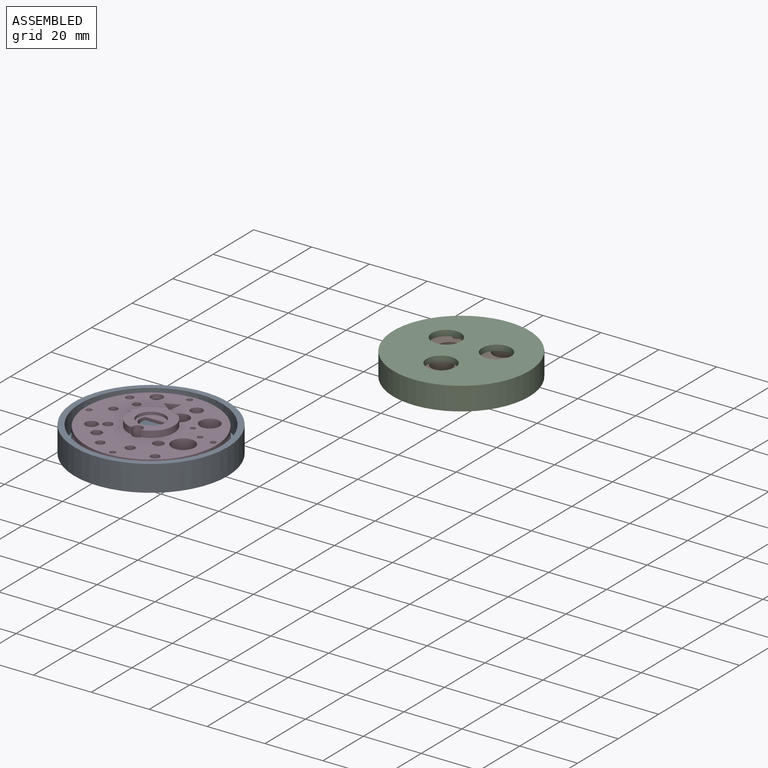
[diagram: assembled view]
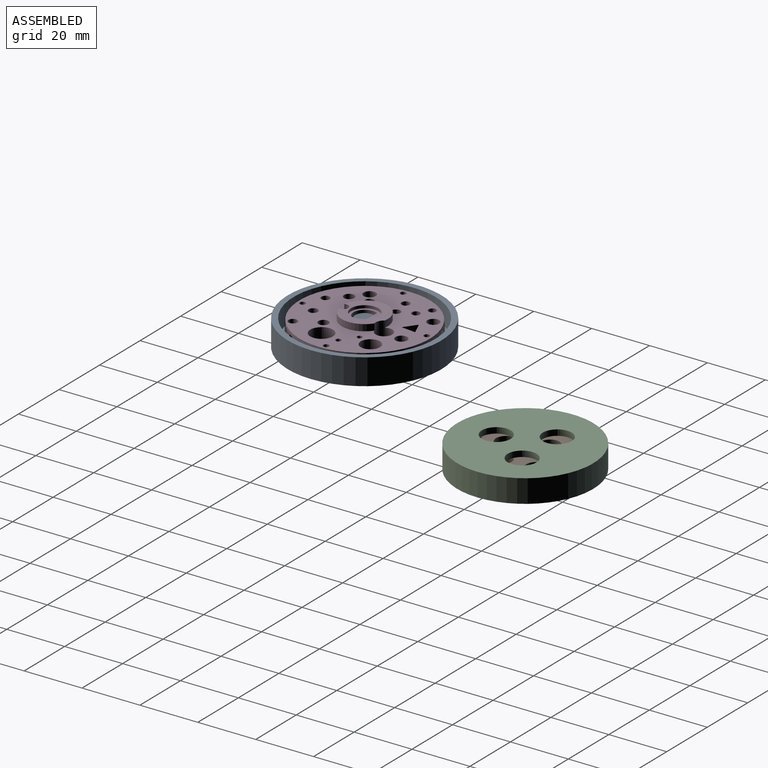
[diagram: assembled view, second angle]
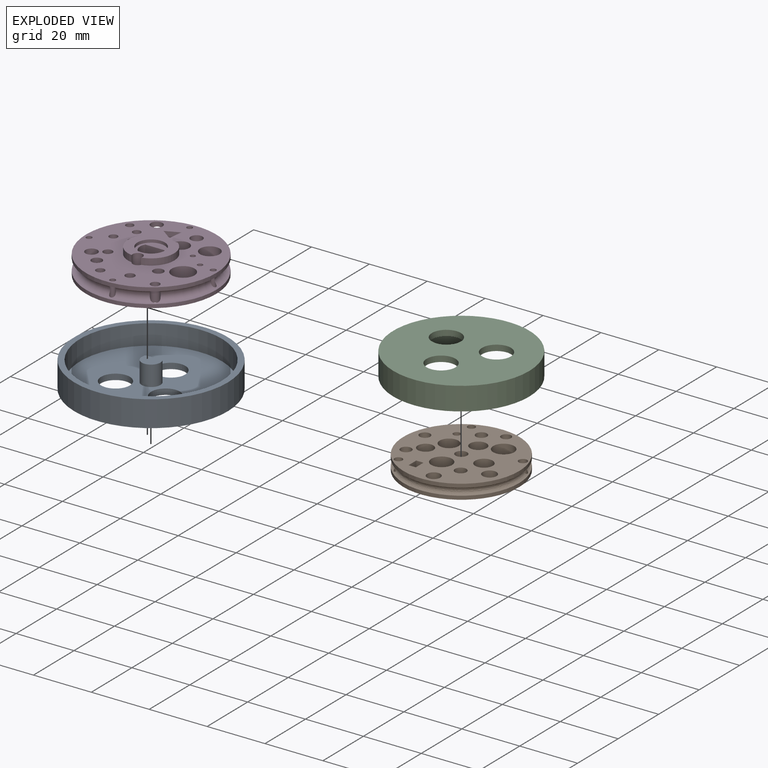
[diagram: exploded view]
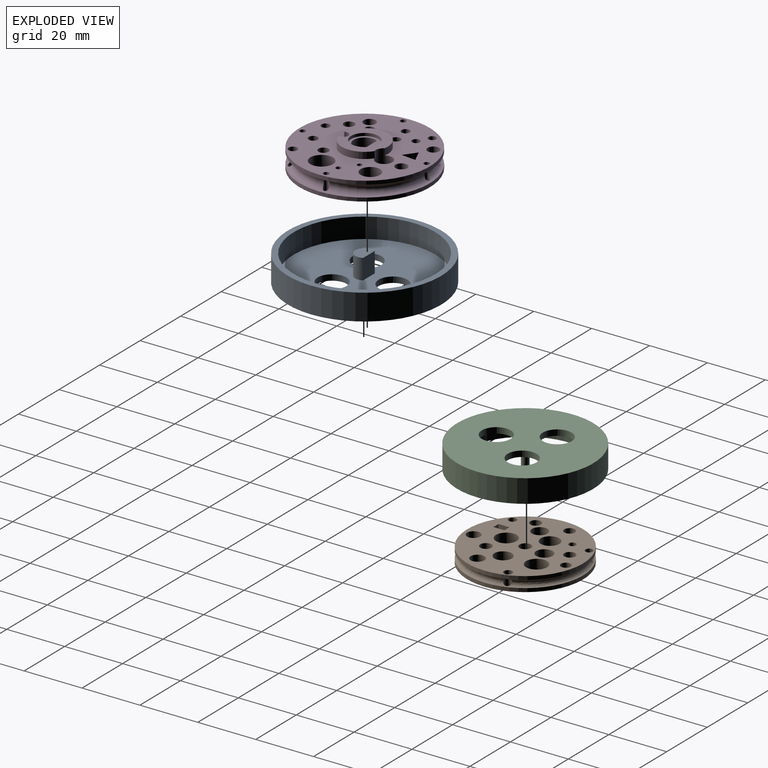
[diagram: exploded view, second angle]
ASSEMBLY  parts=4 mates=2
PART A: 11 faces, bbox 53x53x9 mm
  f0: cylinder r=24.5mm len=49mm, axis (0,0,-1), area 1077.6mm2, adj f2,f10
  f1: cylinder r=26.5mm len=53mm, axis (0,0,-1), area 1498.5mm2, adj f2,f3
  f2: plane 53x53mm, normal (0,0,1), area 320.4mm2, adj f0,f1
  f3: plane 53x53mm, normal (0,0,-1), area 1970.6mm2, adj f1,f7,f8,f9
  f4: cylinder r=3.25mm len=7mm, axis (0,0,-1), area 93.3mm2, adj f5,f6,f10
  f5: plane 7x5.77mm, normal (0,1,0), area 40.4mm2, adj f4,f6,f10
  f6: plane 6.5x4.75mm, normal (0,0,1), area 26mm2, adj f4,f5
  f7: cylinder r=5mm len=10mm, axis (0,0,-1), area 62.8mm2, adj f3,f10
  f8: cylinder r=5mm len=10mm, axis (0,0,-1), area 62.8mm2, adj f3,f10
  f9: cylinder r=5mm len=10mm, axis (0,0,-1), area 62.8mm2, adj f3,f10
  f10: plane 49x49mm, normal (0,0,1), area 1624.1mm2, adj f0,f4,f5,f7,f8,f9
PART B: 27 faces, bbox 40x40x5 mm
  f0: cylinder r=1.35mm len=5mm, axis (0,0,-1), area 37.2mm2, adj f24,f25,f26
  f1: cylinder r=2.28mm len=5mm, axis (0,0,-1), area 71.5mm2, adj f24,f25,f26
  f2: cylinder r=1.45mm len=5mm, axis (0,0,-1), area 39.8mm2, adj f24,f25,f26
  f3: cylinder r=1.29mm len=5mm, axis (0,0,-1), area 34.7mm2, adj f24,f25,f26
  f4: cylinder r=20mm len=40mm, axis (0,0,-1), area 157.4mm2, adj f25,f26
  f5: cylinder r=20mm len=40mm, axis (0,0,-1), area 157.4mm2, adj f24,f26
  f6: plane 5x3.79mm, normal (-1,0,0), area 18.9mm2, adj f7,f9,f24,f25
  f7: plane 5x2.5mm, normal (0,1,0), area 12.5mm2, adj f6,f8,f24,f25
  f8: plane 5x3.79mm, normal (1,0,0), area 18.9mm2, adj f7,f9,f24,f25
  f9: plane 5x2.5mm, normal (0,-1,0), area 12.5mm2, adj f6,f8,f24,f25
  f10: cylinder r=2mm len=5mm, axis (0,0,-1), area 62.8mm2, adj f24,f25
  f11: cylinder r=1.2mm len=5mm, axis (0,0,-1), area 37.8mm2, adj f24,f25
  f12: cylinder r=3.24mm len=6.48mm, axis (0,0,-1), area 101.9mm2, adj f24,f25
  f13: cylinder r=3.62mm len=7.25mm, axis (0,0,-1), area 113.8mm2, adj f24,f25
  f14: cylinder r=2.85mm len=5.69mm, axis (0,0,-1), area 89.4mm2, adj f24,f25
  f15: cylinder r=1.9mm len=5mm, axis (0,0,-1), area 59.7mm2, adj f24,f25
  f16: cylinder r=2.7mm len=5.4mm, axis (0,0,-1), area 84.8mm2, adj f24,f25
  f17: cylinder r=3.59mm len=7.19mm, axis (0,0,-1), area 112.9mm2, adj f24,f25
  f18: cylinder r=1.96mm len=5mm, axis (0,0,-1), area 61.5mm2, adj f24,f25
  f19: cylinder r=3.03mm len=6.05mm, axis (0,0,-1), area 95.1mm2, adj f24,f25
  f20: cylinder r=1.83mm len=5mm, axis (0,0,-1), area 57.5mm2, adj f24,f25
  f21: cylinder r=1.86mm len=5mm, axis (0,0,-1), area 58.5mm2, adj f24,f25
  f22: cylinder r=2.39mm len=5mm, axis (0,0,-1), area 75.1mm2, adj f24,f25
  f23: cylinder r=1.7mm len=5mm, axis (0,0,-1), area 53.4mm2, adj f24,f25
  f24: plane 40x40mm, normal (0,0,1), area 932.3mm2, adj f0,f1,f2,f3,f5,f6,f7,f8
  f25: plane 40x40mm, normal (0,0,-1), area 932.3mm2, adj f0,f1,f2,f3,f4,f6,f7,f8
  f26: bspline ~39.91x39.3mm, area 438mm2, adj f0,f1,f2,f3,f4,f5
PART C: 10 faces, bbox 47x47x8 mm
  f0: cylinder r=21.5mm len=43mm, axis (0,0,-1), area 810.5mm2, adj f2,f9
  f1: cylinder r=23.5mm len=47mm, axis (0,0,-1), area 1181.2mm2, adj f2,f3
  f2: plane 47x47mm, normal (0,0,1), area 282.7mm2, adj f0,f1
  f3: plane 47x47mm, normal (0,0,-1), area 1499.3mm2, adj f1,f6,f7,f8
  f4: cylinder r=1.25mm len=6mm, axis (0,0,-1), area 47.1mm2, adj f5,f9
  f5: plane 2.5x2.5mm, normal (0,0,1), area 4.9mm2, adj f4
  f6: cylinder r=5mm len=10mm, axis (0,0,-1), area 62.8mm2, adj f3,f9
  f7: cylinder r=5mm len=10mm, axis (0,0,-1), area 62.8mm2, adj f3,f9
  f8: cylinder r=5mm len=10mm, axis (0,0,-1), area 62.8mm2, adj f3,f9
  f9: plane 43x43mm, normal (0,0,1), area 1211.7mm2, adj f0,f4,f6,f7,f8
PART D: 38 faces, bbox 48.7x48.7x8.8 mm
  f0: cylinder r=22.5mm len=45mm, axis (0,0,-1), area 176.7mm2, adj f36,f37
  f1: cylinder r=3.85mm len=7.75mm, axis (0,0,-1), area 124.5mm2, adj f2,f3,f4
  f2: plane 7.75x6.7mm, normal (0,-1,0), area 51.9mm2, adj f1,f3,f4
  f3: plane 9.5x9.5mm, normal (0,0,1), area 33.6mm2, adj f1,f2,f5
  f4: plane 45x45mm, normal (0,0,-1), area 1292.2mm2, adj f1,f2,f6,f8,f11,f12,f13,f14
  f5: cylinder r=4.75mm len=9.5mm, axis (0,0,-1), area 29.8mm2, adj f3,f10
  f6: cylinder r=2.88mm len=8.75mm, axis (0,0,-1), area 126.3mm2, adj f4,f7,f9,f10,f36
  f7: cylinder r=7.95mm len=15.81mm, axis (0,0,-1), area 56.3mm2, adj f6,f8,f10,f36
  f8: cylinder r=1.71mm len=8.75mm, axis (0,0,-1), area 85.2mm2, adj f4,f7,f9,f10,f36
  f9: cylinder r=7.95mm len=14.24mm, axis (0,0,-1), area 40.9mm2, adj f6,f8,f10,f36
  f10: plane 15.9x15.81mm, normal (0,0,1), area 118.6mm2, adj f5,f6,f7,f8,f9
  f11: plane 6.5x4.68mm, normal (0.4,-0.92,0), area 33.2mm2, adj f4,f12,f13,f36
  f12: plane 6.5x5.08mm, normal (-0.99,0.11,0), area 33.2mm2, adj f4,f11,f13,f36
  f13: plane 6.5x4.12mm, normal (0.59,0.81,0), area 33.2mm2, adj f4,f11,f12,f36
  f14: cylinder r=0.97mm len=6.5mm, axis (0,0,-1), area 29.9mm2, adj f4,f36,f37
  f15: cylinder r=0.97mm len=6.5mm, axis (0,0,-1), area 30mm2, adj f4,f36,f37
  f16: cylinder r=0.97mm len=6.5mm, axis (0,0,-1), area 30mm2, adj f4,f36,f37
  f17: cylinder r=0.97mm len=6.5mm, axis (0,0,-1), area 30mm2, adj f4,f36,f37
  f18: cylinder r=2.02mm len=6.5mm, axis (0,0,-1), area 70mm2, adj f4,f36,f37
  f19: cylinder r=1.56mm len=6.5mm, axis (0,0,-1), area 63.8mm2, adj f4,f36
  f20: cylinder r=1.79mm len=6.5mm, axis (0,0,-1), area 73.3mm2, adj f4,f36
  f21: cylinder r=1.59mm len=6.5mm, axis (0,0,-1), area 64.8mm2, adj f4,f36
  f22: cylinder r=3.94mm len=7.88mm, axis (0,0,-1), area 160.8mm2, adj f4,f36
  f23: cylinder r=3.37mm len=6.73mm, axis (0,0,-1), area 137.5mm2, adj f4,f36
  f24: cylinder r=2.03mm len=6.5mm, axis (0,0,-1), area 83mm2, adj f4,f36
  f25: cylinder r=1.36mm len=6.5mm, axis (0,0,-1), area 55.3mm2, adj f4,f36
  f26: cylinder r=1.42mm len=6.5mm, axis (0,0,-1), area 57.9mm2, adj f4,f36
  f27: cylinder r=1.31mm len=6.5mm, axis (0,0,-1), area 44.9mm2, adj f4,f36,f37
  f28: cylinder r=2.08mm len=6.5mm, axis (0,0,-1), area 85.1mm2, adj f4,f36
  f29: cylinder r=0.9mm len=6.5mm, axis (0,0,-1), area 36.9mm2, adj f4,f36
  f30: cylinder r=1.53mm len=6.5mm, axis (0,0,-1), area 48.1mm2, adj f4,f36,f37
  f31: cylinder r=1.77mm len=6.5mm, axis (0,0,-1), area 72.4mm2, adj f4,f36
  f32: cylinder r=1.46mm len=6.5mm, axis (0,0,-1), area 59.7mm2, adj f4,f36
  f33: cylinder r=0.86mm len=6.5mm, axis (0,0,-1), area 35mm2, adj f4,f36
  f34: cylinder r=1.46mm len=6.5mm, axis (0,0,-1), area 59.5mm2, adj f4,f36
  f35: cylinder r=22.5mm len=45mm, axis (0,0,-1), area 176.7mm2, adj f4,f37
  f36: plane 45x45mm, normal (0,0,1), area 1140mm2, adj f0,f6,f7,f8,f9,f11,f12,f13
  f37: torus R=22.51mm, axis (0,0,1), area 770mm2, adj f0,f14,f15,f16,f17,f18,f27,f30
PLACE A t=(17.65,-70.03,-4.56)mm
PLACE B t=(3.6,-25.51,-0.76)mm
PLACE C rot(axis=(1,0,0),180deg) t=(16.22,76.5,6.24)mm
PLACE D t=(67.68,-34.37,-2.56)mm
MATE fastened A.f10 <-> D.f0  axis (0,0,1) through (17.65,-70,-2.56)mm
MATE fastened C.f0 <-> B.f4  axis (0,0,-1) through (63.51,17.58,4.24)mm
